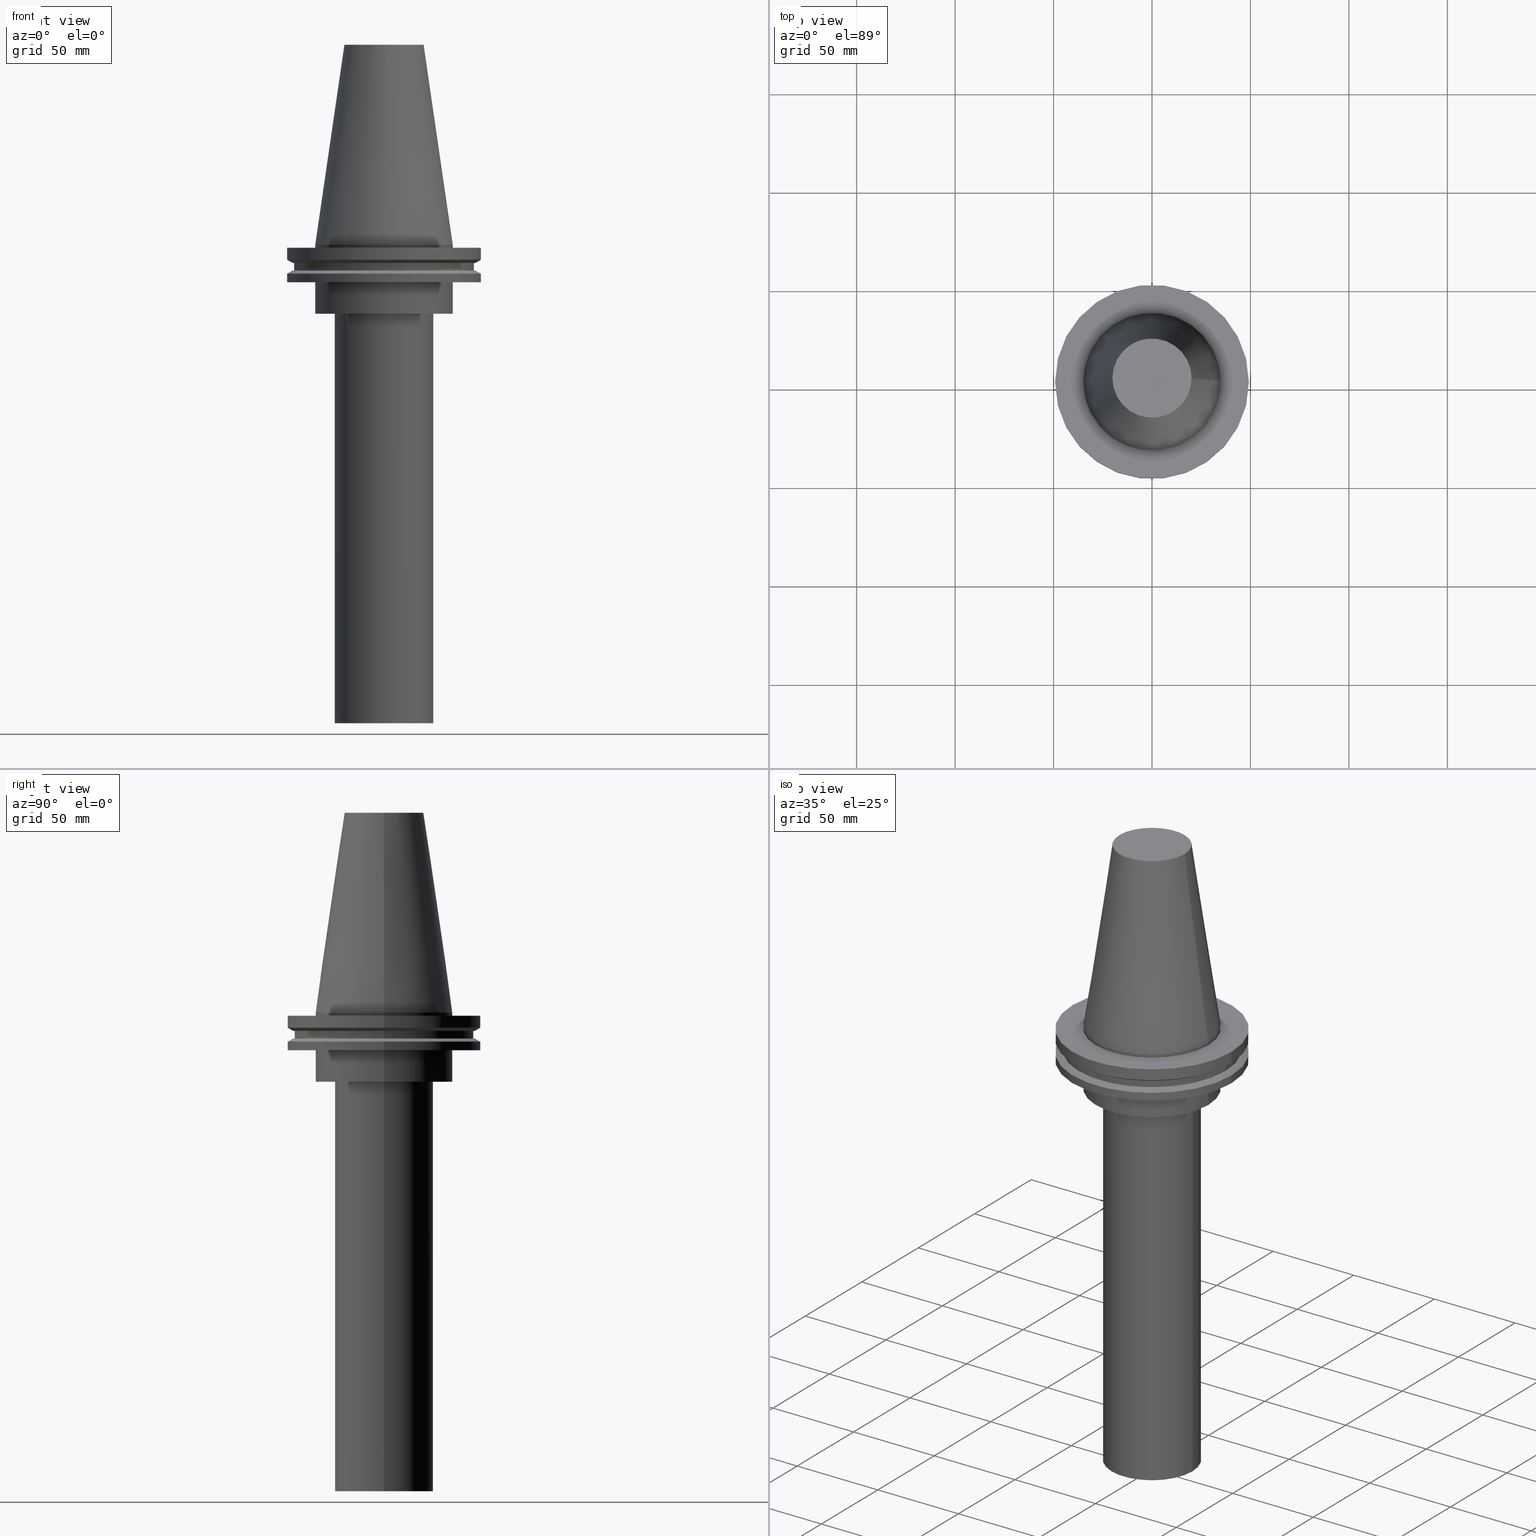
[diagram: canonical four-view strip — front | top / right | iso, engineering-drawing reading convention]
A machine part, canonical four-view strip (front | top / right | iso — engineering-drawing reading convention). The complete STEP part file that produces these views, byte-faithful:
ISO-10303-21;
HEADER;
FILE_DESCRIPTION (( 'STEP AP203' ),
    '1' );
FILE_NAME ('11.326.656.stp',
    '2022-03-09T14:52:16',
    ( '' ),
    ( '' ),
    'SwSTEP 2.0',
    'SolidWorks 2021',
    '' );
FILE_SCHEMA (( 'CONFIG_CONTROL_DESIGN' ));
ENDSEC;

DATA;
#1 = CARTESIAN_POINT ( 'NONE',  ( 49.21499999999998920, 0.000000000000000000, -19.04999999999999716 ) ) ;
#2 = ORIENTED_EDGE ( 'NONE', *, *, #74, .T. ) ;
#3 = CIRCLE ( 'NONE', #36, 49.21499999999998920 ) ;
#4 = EDGE_LOOP ( 'NONE', ( #180 ) ) ;
#5 = EDGE_LOOP ( 'NONE', ( #132 ) ) ;
#6 = FACE_OUTER_BOUND ( 'NONE', #312, .T. ) ;
#7 = ADVANCED_FACE ( 'NONE', ( #6, #198 ), #338, .T. ) ;
#8 = CARTESIAN_POINT ( 'NONE',  ( 0.000000000000000000, 0.000000000000000000, -13.05499999999999794 ) ) ;
#9 = AXIS2_PLACEMENT_3D ( 'NONE', #72, #148, #352 ) ;
#10 = AXIS2_PLACEMENT_3D ( 'NONE', #179, #154, #122 ) ;
#11 = PERSON_AND_ORGANIZATION ( #300, #267 ) ;
#12 = PLANE ( 'NONE',  #159 ) ;
#13 = DIRECTION ( 'NONE',  ( 1.000000000000000000, 0.000000000000000000, 0.000000000000000000 ) ) ;
#14 = FACE_BOUND ( 'NONE', #373, .T. ) ;
#15 = CC_DESIGN_APPROVAL ( #59, ( #130 ) ) ;
#16 = CC_DESIGN_PERSON_AND_ORGANIZATION_ASSIGNMENT ( #176, #162, ( #226 ) ) ;
#17 = PLANE ( 'NONE',  #341 ) ;
#18 = DATE_AND_TIME ( #83, #273 ) ;
#19 = DIRECTION ( 'NONE',  ( 1.000000000000000000, 0.000000000000000000, 0.000000000000000000 ) ) ;
#20 = PERSON_AND_ORGANIZATION_ROLE ( 'creator' ) ;
#21 = DIRECTION ( 'NONE',  ( -0.000000000000000000, -0.000000000000000000, 1.000000000000000000 ) ) ;
#22 = CALENDAR_DATE ( 2022, 9, 3 ) ;
#23 = CONICAL_SURFACE ( 'NONE', #240, 34.92499999999999005, 0.1448138465474119452 ) ;
#24 = DIRECTION ( 'NONE',  ( 1.000000000000000000, 0.000000000000000000, 0.000000000000000000 ) ) ;
#25 = APPROVAL_ROLE ( '' ) ;
#26 = CARTESIAN_POINT ( 'NONE',  ( 34.92499999999999005, 0.000000000000000000, 0.000000000000000000 ) ) ;
#27 = DIRECTION ( 'NONE',  ( -1.000000000000000000, 0.000000000000000000, 0.000000000000000000 ) ) ;
#28 = CYLINDRICAL_SURFACE ( 'NONE', #10, 34.92499999999999005 ) ;
#29 = CC_DESIGN_DATE_AND_TIME_ASSIGNMENT ( #77, #324, ( #294 ) ) ;
#30 = PERSON_AND_ORGANIZATION_ROLE ( 'classification_officer' ) ;
#31 = ADVANCED_FACE ( 'NONE', ( #280, #133 ), #227, .T. ) ;
#32 = EDGE_LOOP ( 'NONE', ( #191 ) ) ;
#33 = EDGE_CURVE ( 'NONE', #58, #58, #355, .T. ) ;
#34 = CARTESIAN_POINT ( 'NONE',  ( 0.000000000000000000, 0.000000000000000000, -1.499999999999987566 ) ) ;
#35 = CARTESIAN_POINT ( 'NONE',  ( 25.00000000000000000, 0.000000000000000000, -35.00000000000000000 ) ) ;
#36 = AXIS2_PLACEMENT_3D ( 'NONE', #52, #177, #91 ) ;
#37 = EDGE_LOOP ( 'NONE', ( #85 ) ) ;
#38 = ORIENTED_EDGE ( 'NONE', *, *, #372, .T. ) ;
#39 = APPROVAL_STATUS ( 'not_yet_approved' ) ;
#40 = CARTESIAN_POINT ( 'NONE',  ( 0.000000000000000000, 0.000000000000000000, 101.5999999999999943 ) ) ;
#41 = APPLICATION_PROTOCOL_DEFINITION ( 'international standard', 'config_control_design', 1994, #375 ) ;
#42 = EDGE_LOOP ( 'NONE', ( #316 ) ) ;
#43 = LOCAL_TIME ( 8, 52, 16.00000000000000000, #153 ) ;
#44 = EDGE_CURVE ( 'NONE', #244, #244, #318, .T. ) ;
#45 = PLANE ( 'NONE',  #67 ) ;
#46 = CYLINDRICAL_SURFACE ( 'NONE', #374, 49.21499999999999631 ) ;
#47 = CARTESIAN_POINT ( 'NONE',  ( 0.000000000000000000, 0.000000000000000000, -9.204999999999991189 ) ) ;
#48 = AXIS2_PLACEMENT_3D ( 'NONE', #47, #206, #290 ) ;
#49 = DIRECTION ( 'NONE',  ( 1.000000000000000000, 0.000000000000000000, 0.000000000000000000 ) ) ;
#50 = EDGE_CURVE ( 'NONE', #96, #96, #225, .T. ) ;
#51 = MECHANICAL_CONTEXT ( 'NONE', #333, 'mechanical' ) ;
#52 = CARTESIAN_POINT ( 'NONE',  ( 0.000000000000000000, 0.000000000000000000, -19.04999999999999716 ) ) ;
#53 = DIRECTION ( 'NONE',  ( 0.000000000000000000, 0.000000000000000000, -1.000000000000000000 ) ) ;
#54 = EDGE_LOOP ( 'NONE', ( #164 ) ) ;
#55 = DIRECTION ( 'NONE',  ( 1.000000000000000000, 0.000000000000000000, 0.000000000000000000 ) ) ;
#56 = EDGE_LOOP ( 'NONE', ( #183 ) ) ;
#57 = SECURITY_CLASSIFICATION_LEVEL ( 'unclassified' ) ;
#58 = VERTEX_POINT ( 'NONE', #391 ) ;
#59 = APPROVAL ( #39, 'UNSPECIFIED' ) ;
#60 = CARTESIAN_POINT ( 'NONE',  ( 0.000000000000000000, 0.000000000000000000, 101.5999999999999943 ) ) ;
#61 = ORIENTED_EDGE ( 'NONE', *, *, #230, .T. ) ;
#62 = PLANE ( 'NONE',  #66 ) ;
#63 = CC_DESIGN_PERSON_AND_ORGANIZATION_ASSIGNMENT ( #192, #30, ( #130 ) ) ;
#64 = CC_DESIGN_PERSON_AND_ORGANIZATION_ASSIGNMENT ( #86, #356, ( #257 ) ) ;
#65 = ORIENTED_EDGE ( 'NONE', *, *, #50, .F. ) ;
#66 = AXIS2_PLACEMENT_3D ( 'NONE', #108, #309, #231 ) ;
#67 = AXIS2_PLACEMENT_3D ( 'NONE', #149, #208, #351 ) ;
#68 = DIRECTION ( 'NONE',  ( -0.000000000000000000, -0.000000000000000000, 1.000000000000000000 ) ) ;
#69 = ADVANCED_FACE ( 'NONE', ( #380, #376 ), #62, .F. ) ;
#70 = EDGE_LOOP ( 'NONE', ( #103 ) ) ;
#71 = ORIENTED_EDGE ( 'NONE', *, *, #104, .T. ) ;
#72 = CARTESIAN_POINT ( 'NONE',  ( 0.000000000000000000, 49.21499999999998920, -19.04999999999999716 ) ) ;
#73 = CIRCLE ( 'NONE', #286, 49.21499999999999631 ) ;
#74 = EDGE_CURVE ( 'NONE', #150, #150, #90, .T. ) ;
#75 = FACE_OUTER_BOUND ( 'NONE', #367, .T. ) ;
#76 = DIRECTION ( 'NONE',  ( -0.000000000000000000, -0.000000000000000000, 1.000000000000000000 ) ) ;
#77 = DATE_AND_TIME ( #263, #43 ) ;
#78 = ADVANCED_FACE ( 'NONE', ( #223, #288 ), #384, .F. ) ;
#79 = CARTESIAN_POINT ( 'NONE',  ( 0.000000000000000000, 0.000000000000000000, -19.04999999999999716 ) ) ;
#80 = CONICAL_SURFACE ( 'NONE', #215, 46.43919780457007818, 1.047197551196575205 ) ;
#81 = PERSON_AND_ORGANIZATION ( #300, #267 ) ;
#82 = FACE_OUTER_BOUND ( 'NONE', #5, .T. ) ;
#83 = CALENDAR_DATE ( 2022, 9, 3 ) ;
#84 = CARTESIAN_POINT ( 'NONE',  ( 0.000000000000000000, 0.000000000000000000, -35.00000000000000000 ) ) ;
#85 = ORIENTED_EDGE ( 'NONE', *, *, #359, .T. ) ;
#86 = PERSON_AND_ORGANIZATION ( #300, #267 ) ;
#87 = ADVANCED_BREP_SHAPE_REPRESENTATION ( '11.326.656', ( #315, #207 ), #383 ) ;
#88 = CARTESIAN_POINT ( 'NONE',  ( 45.64500000000000313, 0.000000000000000000, -9.204999999999991189 ) ) ;
#89 = ORIENTED_EDGE ( 'NONE', *, *, #190, .F. ) ;
#90 = CIRCLE ( 'NONE', #213, 34.92499999999999005 ) ;
#91 = DIRECTION ( 'NONE',  ( 1.000000000000000000, 0.000000000000000000, 0.000000000000000000 ) ) ;
#92 = ORIENTED_EDGE ( 'NONE', *, *, #33, .F. ) ;
#93 = CC_DESIGN_PERSON_AND_ORGANIZATION_ASSIGNMENT ( #81, #20, ( #226 ) ) ;
#94 = FACE_OUTER_BOUND ( 'NONE', #95, .T. ) ;
#95 = EDGE_LOOP ( 'NONE', ( #2 ) ) ;
#96 = VERTEX_POINT ( 'NONE', #123 ) ;
#97 = EDGE_LOOP ( 'NONE', ( #92 ) ) ;
#98 = CARTESIAN_POINT ( 'NONE',  ( 49.21499999999999631, 0.000000000000000000, -1.499999999999987566 ) ) ;
#99 = EDGE_LOOP ( 'NONE', ( #248 ) ) ;
#100 = DIRECTION ( 'NONE',  ( 1.000000000000000000, 0.000000000000000000, 0.000000000000000000 ) ) ;
#101 = ADVANCED_FACE ( 'NONE', ( #266, #292 ), #135, .T. ) ;
#102 =( NAMED_UNIT ( * ) PLANE_ANGLE_UNIT ( ) SI_UNIT ( $, .RADIAN. ) );
#103 = ORIENTED_EDGE ( 'NONE', *, *, #44, .T. ) ;
#104 = EDGE_CURVE ( 'NONE', #250, #250, #111, .T. ) ;
#105 = AXIS2_PLACEMENT_3D ( 'NONE', #336, #68, #262 ) ;
#106 = AXIS2_PLACEMENT_3D ( 'NONE', #79, #76, #13 ) ;
#107 = EDGE_LOOP ( 'NONE', ( #302 ) ) ;
#108 = CARTESIAN_POINT ( 'NONE',  ( 0.000000000000000000, 46.43919780457007818, -9.204999999999998295 ) ) ;
#109 = CARTESIAN_POINT ( 'NONE',  ( 0.000000000000000000, 0.000000000000000000, 101.5999999999999801 ) ) ;
#110 = SHAPE_DEFINITION_REPRESENTATION ( #246, #87 ) ;
#111 = CIRCLE ( 'NONE', #350, 25.00000000000000000 ) ;
#112 = DIRECTION ( 'NONE',  ( 1.000000000000000000, 0.000000000000000000, 0.000000000000000000 ) ) ;
#113 = CARTESIAN_POINT ( 'NONE',  ( 0.000000000000000000, 0.000000000000000000, -14.65761014474876944 ) ) ;
#114 = FACE_OUTER_BOUND ( 'NONE', #344, .T. ) ;
#115 = APPLICATION_PROTOCOL_DEFINITION ( 'international standard', 'config_control_design', 1994, #333 ) ;
#116 = CARTESIAN_POINT ( 'NONE',  ( 0.000000000000000000, 25.00000000000000000, -243.0000000000000000 ) ) ;
#117 = AXIS2_PLACEMENT_3D ( 'NONE', #237, #171, #325 ) ;
#118 = LOCAL_TIME ( 8, 52, 16.00000000000000000, #229 ) ;
#119 = EDGE_CURVE ( 'NONE', #242, #242, #328, .T. ) ;
#120 = DIRECTION ( 'NONE',  ( 1.000000000000000000, 0.000000000000000000, 0.000000000000000000 ) ) ;
#121 = ORIENTED_EDGE ( 'NONE', *, *, #372, .F. ) ;
#122 = DIRECTION ( 'NONE',  ( 1.000000000000000000, 0.000000000000000000, 0.000000000000000000 ) ) ;
#123 = CARTESIAN_POINT ( 'NONE',  ( 46.43919780457007818, 0.000000000000000000, -9.204999999999991189 ) ) ;
#124 = DIRECTION ( 'NONE',  ( 1.000000000000000000, 0.000000000000000000, 0.000000000000000000 ) ) ;
#125 = EDGE_LOOP ( 'NONE', ( #161 ) ) ;
#126 = EDGE_CURVE ( 'NONE', #182, #182, #371, .T. ) ;
#127 = CARTESIAN_POINT ( 'NONE',  ( 0.000000000000000000, 0.000000000000000000, -14.65761014474876944 ) ) ;
#128 = DIRECTION ( 'NONE',  ( 1.000000000000000000, 0.000000000000000000, 0.000000000000000000 ) ) ;
#129 = LOCAL_TIME ( 8, 52, 16.00000000000000000, #194 ) ;
#130 = SECURITY_CLASSIFICATION ( '', '', #57 ) ;
#131 = DIRECTION ( 'NONE',  ( -0.000000000000000000, -0.000000000000000000, 1.000000000000000000 ) ) ;
#132 = ORIENTED_EDGE ( 'NONE', *, *, #104, .F. ) ;
#133 = FACE_OUTER_BOUND ( 'NONE', #390, .T. ) ;
#134 = AXIS2_PLACEMENT_3D ( 'NONE', #313, #283, #258 ) ;
#135 = CONICAL_SURFACE ( 'NONE', #291, 49.21499999999998920, 1.047197551196554333 ) ;
#136 =( NAMED_UNIT ( * ) SI_UNIT ( $, .STERADIAN. ) SOLID_ANGLE_UNIT ( ) );
#137 = CIRCLE ( 'NONE', #282, 34.92499999999999716 ) ;
#138 = DIRECTION ( 'NONE',  ( 1.000000000000000000, 0.000000000000000000, 0.000000000000000000 ) ) ;
#139 = APPROVAL_DATE_TIME ( #210, #241 ) ;
#140 = DIRECTION ( 'NONE',  ( -0.000000000000000000, -0.000000000000000000, 1.000000000000000000 ) ) ;
#141 = APPROVAL_ROLE ( '' ) ;
#142 = ADVANCED_FACE ( 'NONE', ( #14, #271 ), #268, .F. ) ;
#143 = FACE_BOUND ( 'NONE', #32, .T. ) ;
#144 = CIRCLE ( 'NONE', #106, 34.92499999999999716 ) ;
#145 = CARTESIAN_POINT ( 'NONE',  ( 0.000000000000000000, 49.21499999999999631, -1.499999999999992895 ) ) ;
#146 = APPROVAL_PERSON_ORGANIZATION ( #11, #241, #25 ) ;
#147 = ADVANCED_FACE ( 'NONE', ( #82 ), #17, .F. ) ;
#148 = DIRECTION ( 'NONE',  ( 0.000000000000000000, -0.000000000000000000, 1.000000000000000000 ) ) ;
#149 = CARTESIAN_POINT ( 'NONE',  ( 0.000000000000000000, 20.10819343178871321, 101.5999999999999943 ) ) ;
#150 = VERTEX_POINT ( 'NONE', #216 ) ;
#151 = AXIS2_PLACEMENT_3D ( 'NONE', #340, #252, #138 ) ;
#152 = AXIS2_PLACEMENT_3D ( 'NONE', #204, #289, #234 ) ;
#153 = COORDINATED_UNIVERSAL_TIME_OFFSET ( 6, 0, .BEHIND. ) ;
#154 = DIRECTION ( 'NONE',  ( -0.000000000000000000, -0.000000000000000000, 1.000000000000000000 ) ) ;
#155 = PERSON_AND_ORGANIZATION_ROLE ( 'creator' ) ;
#156 = DIRECTION ( 'NONE',  ( -0.000000000000000000, -0.000000000000000000, 1.000000000000000000 ) ) ;
#157 = DATE_TIME_ROLE ( 'classification_date' ) ;
#158 = PLANE ( 'NONE',  #168 ) ;
#159 = AXIS2_PLACEMENT_3D ( 'NONE', #323, #239, #19 ) ;
#160 = FACE_BOUND ( 'NONE', #125, .T. ) ;
#161 = ORIENTED_EDGE ( 'NONE', *, *, #197, .F. ) ;
#162 = PERSON_AND_ORGANIZATION_ROLE ( 'design_supplier' ) ;
#163 = EDGE_LOOP ( 'NONE', ( #277 ) ) ;
#164 = ORIENTED_EDGE ( 'NONE', *, *, #197, .T. ) ;
#165 = ORIENTED_EDGE ( 'NONE', *, *, #359, .F. ) ;
#166 = CALENDAR_DATE ( 2022, 9, 3 ) ;
#167 = EDGE_LOOP ( 'NONE', ( #61 ) ) ;
#168 = AXIS2_PLACEMENT_3D ( 'NONE', #332, #331, #185 ) ;
#169 = FACE_BOUND ( 'NONE', #37, .T. ) ;
#170 = CARTESIAN_POINT ( 'NONE',  ( 0.000000000000000000, 0.000000000000000000, 101.5999999999999943 ) ) ;
#171 = DIRECTION ( 'NONE',  ( -0.000000000000000000, -0.000000000000000000, 1.000000000000000000 ) ) ;
#172 = ADVANCED_FACE ( 'NONE', ( #321, #175 ), #173, .T. ) ;
#173 = CYLINDRICAL_SURFACE ( 'NONE', #334, 45.64500000000000313 ) ;
#174 = LOCAL_TIME ( 8, 52, 16.00000000000000000, #245 ) ;
#175 = FACE_OUTER_BOUND ( 'NONE', #167, .T. ) ;
#176 = PERSON_AND_ORGANIZATION ( #300, #267 ) ;
#177 = DIRECTION ( 'NONE',  ( -0.000000000000000000, -0.000000000000000000, 1.000000000000000000 ) ) ;
#178 = ADVANCED_FACE ( 'NONE', ( #114, #143 ), #80, .T. ) ;
#179 = CARTESIAN_POINT ( 'NONE',  ( 0.000000000000000000, 0.000000000000000000, 101.5999999999999943 ) ) ;
#180 = ORIENTED_EDGE ( 'NONE', *, *, #314, .F. ) ;
#181 = CARTESIAN_POINT ( 'NONE',  ( 45.64500000000000313, 0.000000000000000000, -13.05499999999999794 ) ) ;
#182 = VERTEX_POINT ( 'NONE', #26 ) ;
#183 = ORIENTED_EDGE ( 'NONE', *, *, #317, .F. ) ;
#184 = CALENDAR_DATE ( 2022, 9, 3 ) ;
#185 = DIRECTION ( 'NONE',  ( -1.000000000000000000, 0.000000000000000000, -0.000000000000000000 ) ) ;
#186 = ORIENTED_EDGE ( 'NONE', *, *, #74, .F. ) ;
#187 = AXIS2_PLACEMENT_3D ( 'NONE', #40, #221, #259 ) ;
#188 = CIRCLE ( 'NONE', #233, 25.00000000000000000 ) ;
#189 = CC_DESIGN_DATE_AND_TIME_ASSIGNMENT ( #303, #157, ( #130 ) ) ;
#190 = EDGE_CURVE ( 'NONE', #209, #209, #144, .T. ) ;
#191 = ORIENTED_EDGE ( 'NONE', *, *, #50, .T. ) ;
#192 = PERSON_AND_ORGANIZATION ( #300, #267 ) ;
#193 = EDGE_LOOP ( 'NONE', ( #196 ) ) ;
#194 = COORDINATED_UNIVERSAL_TIME_OFFSET ( 6, 0, .BEHIND. ) ;
#195 = CC_DESIGN_PERSON_AND_ORGANIZATION_ASSIGNMENT ( #345, #155, ( #294 ) ) ;
#196 = ORIENTED_EDGE ( 'NONE', *, *, #126, .F. ) ;
#197 = EDGE_CURVE ( 'NONE', #368, #368, #329, .T. ) ;
#198 = FACE_OUTER_BOUND ( 'NONE', #220, .T. ) ;
#199 = ORIENTED_EDGE ( 'NONE', *, *, #119, .F. ) ;
#200 = AXIS2_PLACEMENT_3D ( 'NONE', #304, #251, #120 ) ;
#201 = DIRECTION ( 'NONE',  ( 0.000000000000000000, 0.000000000000000000, -1.000000000000000000 ) ) ;
#202 = FACE_OUTER_BOUND ( 'NONE', #56, .T. ) ;
#203 = ADVANCED_FACE ( 'NONE', ( #169, #75 ), #12, .F. ) ;
#204 = CARTESIAN_POINT ( 'NONE',  ( 0.000000000000000000, 0.000000000000000000, -13.05499999999999794 ) ) ;
#205 = APPROVAL_ROLE ( '' ) ;
#206 = DIRECTION ( 'NONE',  ( -0.000000000000000000, -0.000000000000000000, 1.000000000000000000 ) ) ;
#207 = AXIS2_PLACEMENT_3D ( 'NONE', #287, #353, #387 ) ;
#208 = DIRECTION ( 'NONE',  ( 0.000000000000000000, 0.000000000000000000, -1.000000000000000000 ) ) ;
#209 = VERTEX_POINT ( 'NONE', #326 ) ;
#210 = DATE_AND_TIME ( #22, #118 ) ;
#211 = ADVANCED_FACE ( 'NONE', ( #235 ), #45, .F. ) ;
#212 = VERTEX_POINT ( 'NONE', #181 ) ;
#213 = AXIS2_PLACEMENT_3D ( 'NONE', #34, #131, #100 ) ;
#214 = EDGE_LOOP ( 'NONE', ( #71 ) ) ;
#215 = AXIS2_PLACEMENT_3D ( 'NONE', #382, #381, #112 ) ;
#216 = CARTESIAN_POINT ( 'NONE',  ( 34.92499999999999005, 0.000000000000000000, -1.499999999999987566 ) ) ;
#217 = CARTESIAN_POINT ( 'NONE',  ( 20.10819343178871321, 0.000000000000000000, 101.5999999999999801 ) ) ;
#218 = ORIENTED_EDGE ( 'NONE', *, *, #317, .T. ) ;
#219 = DIRECTION ( 'NONE',  ( -0.000000000000000000, -0.000000000000000000, 1.000000000000000000 ) ) ;
#220 = EDGE_LOOP ( 'NONE', ( #38 ) ) ;
#221 = DIRECTION ( 'NONE',  ( -0.000000000000000000, -0.000000000000000000, 1.000000000000000000 ) ) ;
#222 =( LENGTH_UNIT ( ) NAMED_UNIT ( * ) SI_UNIT ( .MILLI., .METRE. ) );
#223 = FACE_OUTER_BOUND ( 'NONE', #107, .T. ) ;
#224 = ORIENTED_EDGE ( 'NONE', *, *, #44, .F. ) ;
#225 = CIRCLE ( 'NONE', #105, 46.43919780457007818 ) ;
#226 = PRODUCT_DEFINITION_FORMATION_WITH_SPECIFIED_SOURCE ( 'ANY', '', #257, .NOT_KNOWN. ) ;
#227 = CYLINDRICAL_SURFACE ( 'NONE', #187, 49.21499999999998920 ) ;
#228 = DATE_AND_TIME ( #166, #129 ) ;
#229 = COORDINATED_UNIVERSAL_TIME_OFFSET ( 6, 0, .BEHIND. ) ;
#230 = EDGE_CURVE ( 'NONE', #212, #212, #322, .T. ) ;
#231 = DIRECTION ( 'NONE',  ( 1.000000000000000000, 0.000000000000000000, 0.000000000000000000 ) ) ;
#232 = DIRECTION ( 'NONE',  ( -0.000000000000000000, -0.000000000000000000, 1.000000000000000000 ) ) ;
#233 = AXIS2_PLACEMENT_3D ( 'NONE', #84, #392, #55 ) ;
#234 = DIRECTION ( 'NONE',  ( 1.000000000000000000, 0.000000000000000000, 0.000000000000000000 ) ) ;
#235 = FACE_OUTER_BOUND ( 'NONE', #54, .T. ) ;
#236 = APPROVAL_STATUS ( 'not_yet_approved' ) ;
#237 = CARTESIAN_POINT ( 'NONE',  ( 0.000000000000000000, 0.000000000000000000, 0.000000000000000000 ) ) ;
#238 = APPROVAL_DATE_TIME ( #18, #348 ) ;
#239 = DIRECTION ( 'NONE',  ( 0.000000000000000000, -0.000000000000000000, 1.000000000000000000 ) ) ;
#240 = AXIS2_PLACEMENT_3D ( 'NONE', #330, #53, #27 ) ;
#241 = APPROVAL ( #236, 'UNSPECIFIED' ) ;
#242 = VERTEX_POINT ( 'NONE', #88 ) ;
#243 = EDGE_LOOP ( 'NONE', ( #379 ) ) ;
#244 = VERTEX_POINT ( 'NONE', #394 ) ;
#245 = COORDINATED_UNIVERSAL_TIME_OFFSET ( 6, 0, .BEHIND. ) ;
#246 = PRODUCT_DEFINITION_SHAPE ( 'NONE', 'NONE',  #294 ) ;
#247 = VERTEX_POINT ( 'NONE', #1 ) ;
#248 = ORIENTED_EDGE ( 'NONE', *, *, #190, .T. ) ;
#249 = CC_DESIGN_SECURITY_CLASSIFICATION ( #130, ( #226 ) ) ;
#250 = VERTEX_POINT ( 'NONE', #362 ) ;
#251 = DIRECTION ( 'NONE',  ( -0.000000000000000000, -0.000000000000000000, 1.000000000000000000 ) ) ;
#252 = DIRECTION ( 'NONE',  ( -0.000000000000000000, -0.000000000000000000, 1.000000000000000000 ) ) ;
#253 = AXIS2_PLACEMENT_3D ( 'NONE', #145, #360, #386 ) ;
#254 = CIRCLE ( 'NONE', #388, 49.21499999999998920 ) ;
#255 = DESIGN_CONTEXT ( 'detailed design', #375, 'design' ) ;
#256 = ORIENTED_EDGE ( 'NONE', *, *, #230, .F. ) ;
#257 = PRODUCT ( '11.326.656', '11.326.656', '', ( #51 ) ) ;
#258 = DIRECTION ( 'NONE',  ( 1.000000000000000000, 0.000000000000000000, 0.000000000000000000 ) ) ;
#259 = DIRECTION ( 'NONE',  ( 1.000000000000000000, 0.000000000000000000, 0.000000000000000000 ) ) ;
#260 = AXIS2_PLACEMENT_3D ( 'NONE', #8, #378, #128 ) ;
#261 = CC_DESIGN_APPROVAL ( #241, ( #294 ) ) ;
#262 = DIRECTION ( 'NONE',  ( 1.000000000000000000, 0.000000000000000000, 0.000000000000000000 ) ) ;
#263 = CALENDAR_DATE ( 2022, 9, 3 ) ;
#264 = ADVANCED_FACE ( 'NONE', ( #202, #320 ), #46, .T. ) ;
#265 = DIRECTION ( 'NONE',  ( 1.000000000000000000, 0.000000000000000000, 0.000000000000000000 ) ) ;
#266 = FACE_BOUND ( 'NONE', #97, .T. ) ;
#267 = ORGANIZATION ( 'UNSPECIFIED', 'UNSPECIFIED', '' ) ;
#268 = PLANE ( 'NONE',  #253 ) ;
#269 = DIRECTION ( 'NONE',  ( -1.000000000000000000, 0.000000000000000000, 0.000000000000000000 ) ) ;
#270 = ADVANCED_FACE ( 'NONE', ( #279, #389 ), #158, .F. ) ;
#271 = FACE_OUTER_BOUND ( 'NONE', #310, .T. ) ;
#272 = CYLINDRICAL_SURFACE ( 'NONE', #200, 25.00000000000000000 ) ;
#273 = LOCAL_TIME ( 8, 52, 16.00000000000000000, #293 ) ;
#274 = CARTESIAN_POINT ( 'NONE',  ( 0.000000000000000000, 0.000000000000000000, -35.00000000000000000 ) ) ;
#275 = DIRECTION ( 'NONE',  ( 1.000000000000000000, 0.000000000000000000, 0.000000000000000000 ) ) ;
#276 = CARTESIAN_POINT ( 'NONE',  ( 0.000000000000000000, 0.000000000000000000, -1.499999999999987566 ) ) ;
#277 = ORIENTED_EDGE ( 'NONE', *, *, #33, .T. ) ;
#278 = PERSON_AND_ORGANIZATION ( #300, #267 ) ;
#279 = FACE_BOUND ( 'NONE', #369, .T. ) ;
#280 = FACE_OUTER_BOUND ( 'NONE', #4, .T. ) ;
#281 = ORIENTED_EDGE ( 'NONE', *, *, #306, .T. ) ;
#282 = AXIS2_PLACEMENT_3D ( 'NONE', #274, #21, #124 ) ;
#283 = DIRECTION ( 'NONE',  ( -0.000000000000000000, -0.000000000000000000, 1.000000000000000000 ) ) ;
#284 = ORIENTED_EDGE ( 'NONE', *, *, #126, .T. ) ;
#285 = ADVANCED_FACE ( 'NONE', ( #160, #363 ), #23, .T. ) ;
#286 = AXIS2_PLACEMENT_3D ( 'NONE', #276, #370, #275 ) ;
#287 = CARTESIAN_POINT ( 'NONE',  ( 0.000000000000000000, 0.000000000000000000, 0.000000000000000000 ) ) ;
#288 = FACE_BOUND ( 'NONE', #99, .T. ) ;
#289 = DIRECTION ( 'NONE',  ( -0.000000000000000000, -0.000000000000000000, 1.000000000000000000 ) ) ;
#290 = DIRECTION ( 'NONE',  ( 1.000000000000000000, 0.000000000000000000, 0.000000000000000000 ) ) ;
#291 = AXIS2_PLACEMENT_3D ( 'NONE', #113, #201, #269 ) ;
#292 = FACE_OUTER_BOUND ( 'NONE', #42, .T. ) ;
#293 = COORDINATED_UNIVERSAL_TIME_OFFSET ( 6, 0, .BEHIND. ) ;
#294 = PRODUCT_DEFINITION ( 'UNKNOWN', '', #226, #255 ) ;
#295 = DIRECTION ( 'NONE',  ( 0.000000000000000000, -0.000000000000000000, 1.000000000000000000 ) ) ;
#296 = FACE_OUTER_BOUND ( 'NONE', #214, .T. ) ;
#297 = APPROVAL_PERSON_ORGANIZATION ( #278, #59, #141 ) ;
#298 = DIRECTION ( 'NONE',  ( 1.000000000000000000, 0.000000000000000000, 0.000000000000000000 ) ) ;
#299 = FACE_OUTER_BOUND ( 'NONE', #307, .T. ) ;
#300 = PERSON ( 'UNSPECIFIED', 'UNSPECIFIED', 'UNSPECIFIED', ('UNSPECIFIED'), ('UNSPECIFIED'), ('UNSPECIFIED') ) ;
#301 = FACE_OUTER_BOUND ( 'NONE', #193, .T. ) ;
#302 = ORIENTED_EDGE ( 'NONE', *, *, #306, .F. ) ;
#303 = DATE_AND_TIME ( #184, #174 ) ;
#304 = CARTESIAN_POINT ( 'NONE',  ( 0.000000000000000000, 0.000000000000000000, 0.000000000000000000 ) ) ;
#305 = APPROVAL_PERSON_ORGANIZATION ( #361, #348, #205 ) ;
#306 = EDGE_CURVE ( 'NONE', #247, #247, #3, .T. ) ;
#307 = EDGE_LOOP ( 'NONE', ( #165 ) ) ;
#308 = VERTEX_POINT ( 'NONE', #339 ) ;
#309 = DIRECTION ( 'NONE',  ( 0.000000000000000000, -0.000000000000000000, 1.000000000000000000 ) ) ;
#310 = EDGE_LOOP ( 'NONE', ( #218 ) ) ;
#311 = APPROVAL_DATE_TIME ( #228, #59 ) ;
#312 = EDGE_LOOP ( 'NONE', ( #89 ) ) ;
#313 = CARTESIAN_POINT ( 'NONE',  ( 0.000000000000000000, 0.000000000000000000, 101.5999999999999943 ) ) ;
#314 = EDGE_CURVE ( 'NONE', #366, #366, #254, .T. ) ;
#315 = MANIFOLD_SOLID_BREP ( 'CKB', #393 ) ;
#316 = ORIENTED_EDGE ( 'NONE', *, *, #314, .T. ) ;
#317 = EDGE_CURVE ( 'NONE', #342, #342, #73, .T. ) ;
#318 = CIRCLE ( 'NONE', #151, 49.21500000000000341 ) ;
#319 = CARTESIAN_POINT ( 'NONE',  ( 0.000000000000000000, 0.000000000000000000, -243.0000000000000000 ) ) ;
#320 = FACE_OUTER_BOUND ( 'NONE', #70, .T. ) ;
#321 = FACE_OUTER_BOUND ( 'NONE', #364, .T. ) ;
#322 = CIRCLE ( 'NONE', #152, 45.64500000000000313 ) ;
#323 = CARTESIAN_POINT ( 'NONE',  ( 0.000000000000000000, 34.92499999999999716, -35.00000000000000000 ) ) ;
#324 = DATE_TIME_ROLE ( 'creation_date' ) ;
#325 = DIRECTION ( 'NONE',  ( 1.000000000000000000, 0.000000000000000000, 0.000000000000000000 ) ) ;
#326 = CARTESIAN_POINT ( 'NONE',  ( 34.92499999999999716, 0.000000000000000000, -19.04999999999999716 ) ) ;
#327 = APPROVAL_STATUS ( 'not_yet_approved' ) ;
#328 = CIRCLE ( 'NONE', #48, 45.64500000000000313 ) ;
#329 = CIRCLE ( 'NONE', #358, 20.10819343178871321 ) ;
#330 = CARTESIAN_POINT ( 'NONE',  ( 0.000000000000000000, 0.000000000000000000, 0.000000000000000000 ) ) ;
#331 = DIRECTION ( 'NONE',  ( 0.000000000000000000, 0.000000000000000000, -1.000000000000000000 ) ) ;
#332 = CARTESIAN_POINT ( 'NONE',  ( 0.000000000000000000, 45.64500000000000313, -13.05499999999999794 ) ) ;
#333 = APPLICATION_CONTEXT ( 'configuration controlled 3d designs of mechanical parts and assemblies' ) ;
#334 = AXIS2_PLACEMENT_3D ( 'NONE', #170, #385, #354 ) ;
#335 = EDGE_LOOP ( 'NONE', ( #65 ) ) ;
#336 = CARTESIAN_POINT ( 'NONE',  ( 0.000000000000000000, 0.000000000000000000, -9.204999999999991189 ) ) ;
#337 = VERTEX_POINT ( 'NONE', #35 ) ;
#338 = CYLINDRICAL_SURFACE ( 'NONE', #134, 34.92499999999999716 ) ;
#339 = CARTESIAN_POINT ( 'NONE',  ( 34.92499999999999716, 0.000000000000000000, -35.00000000000000000 ) ) ;
#340 = CARTESIAN_POINT ( 'NONE',  ( 0.000000000000000000, 0.000000000000000000, -7.602389855251287187 ) ) ;
#341 = AXIS2_PLACEMENT_3D ( 'NONE', #116, #295, #49 ) ;
#342 = VERTEX_POINT ( 'NONE', #98 ) ;
#343 = UNCERTAINTY_MEASURE_WITH_UNIT (LENGTH_MEASURE( 1.000000000000000082E-05 ), #222, 'distance_accuracy_value', 'NONE');
#344 = EDGE_LOOP ( 'NONE', ( #224 ) ) ;
#345 = PERSON_AND_ORGANIZATION ( #300, #267 ) ;
#346 = ADVANCED_FACE ( 'NONE', ( #299, #296 ), #272, .T. ) ;
#347 = EDGE_LOOP ( 'NONE', ( #284 ) ) ;
#348 = APPROVAL ( #327, 'UNSPECIFIED' ) ;
#349 = DIRECTION ( 'NONE',  ( 1.000000000000000000, 0.000000000000000000, 0.000000000000000000 ) ) ;
#350 = AXIS2_PLACEMENT_3D ( 'NONE', #319, #140, #265 ) ;
#351 = DIRECTION ( 'NONE',  ( -1.000000000000000000, 0.000000000000000000, -0.000000000000000000 ) ) ;
#352 = DIRECTION ( 'NONE',  ( 1.000000000000000000, 0.000000000000000000, 0.000000000000000000 ) ) ;
#353 = DIRECTION ( 'NONE',  ( 0.000000000000000000, 0.000000000000000000, 1.000000000000000000 ) ) ;
#354 = DIRECTION ( 'NONE',  ( 1.000000000000000000, 0.000000000000000000, 0.000000000000000000 ) ) ;
#355 = CIRCLE ( 'NONE', #260, 46.43919780457007818 ) ;
#356 = PERSON_AND_ORGANIZATION_ROLE ( 'design_owner' ) ;
#357 = PRODUCT_RELATED_PRODUCT_CATEGORY ( 'detail', '', ( #257 ) ) ;
#358 = AXIS2_PLACEMENT_3D ( 'NONE', #109, #232, #349 ) ;
#359 = EDGE_CURVE ( 'NONE', #337, #337, #188, .T. ) ;
#360 = DIRECTION ( 'NONE',  ( 0.000000000000000000, 0.000000000000000000, -1.000000000000000000 ) ) ;
#361 = PERSON_AND_ORGANIZATION ( #300, #267 ) ;
#362 = CARTESIAN_POINT ( 'NONE',  ( 25.00000000000000000, 0.000000000000000000, -243.0000000000000000 ) ) ;
#363 = FACE_OUTER_BOUND ( 'NONE', #347, .T. ) ;
#364 = EDGE_LOOP ( 'NONE', ( #199 ) ) ;
#365 = CC_DESIGN_APPROVAL ( #348, ( #226 ) ) ;
#366 = VERTEX_POINT ( 'NONE', #377 ) ;
#367 = EDGE_LOOP ( 'NONE', ( #121 ) ) ;
#368 = VERTEX_POINT ( 'NONE', #217 ) ;
#369 = EDGE_LOOP ( 'NONE', ( #256 ) ) ;
#370 = DIRECTION ( 'NONE',  ( -0.000000000000000000, -0.000000000000000000, 1.000000000000000000 ) ) ;
#371 = CIRCLE ( 'NONE', #117, 34.92499999999999005 ) ;
#372 = EDGE_CURVE ( 'NONE', #308, #308, #137, .T. ) ;
#373 = EDGE_LOOP ( 'NONE', ( #186 ) ) ;
#374 = AXIS2_PLACEMENT_3D ( 'NONE', #60, #156, #298 ) ;
#375 = APPLICATION_CONTEXT ( 'configuration controlled 3d designs of mechanical parts and assemblies' ) ;
#376 = FACE_BOUND ( 'NONE', #243, .T. ) ;
#377 = CARTESIAN_POINT ( 'NONE',  ( 49.21499999999998920, 0.000000000000000000, -14.65761014474876944 ) ) ;
#378 = DIRECTION ( 'NONE',  ( -0.000000000000000000, -0.000000000000000000, 1.000000000000000000 ) ) ;
#379 = ORIENTED_EDGE ( 'NONE', *, *, #119, .T. ) ;
#380 = FACE_OUTER_BOUND ( 'NONE', #335, .T. ) ;
#381 = DIRECTION ( 'NONE',  ( -0.000000000000000000, -0.000000000000000000, 1.000000000000000000 ) ) ;
#382 = CARTESIAN_POINT ( 'NONE',  ( 0.000000000000000000, 0.000000000000000000, -9.204999999999991189 ) ) ;
#383 =( GEOMETRIC_REPRESENTATION_CONTEXT ( 3 ) GLOBAL_UNCERTAINTY_ASSIGNED_CONTEXT ( ( #343 ) ) GLOBAL_UNIT_ASSIGNED_CONTEXT ( ( #222, #102, #136 ) ) REPRESENTATION_CONTEXT ( 'NONE', 'WORKASPACE' ) );
#384 = PLANE ( 'NONE',  #9 ) ;
#385 = DIRECTION ( 'NONE',  ( -0.000000000000000000, -0.000000000000000000, 1.000000000000000000 ) ) ;
#386 = DIRECTION ( 'NONE',  ( -1.000000000000000000, 0.000000000000000000, -0.000000000000000000 ) ) ;
#387 = DIRECTION ( 'NONE',  ( 1.000000000000000000, 0.000000000000000000, 0.000000000000000000 ) ) ;
#388 = AXIS2_PLACEMENT_3D ( 'NONE', #127, #219, #24 ) ;
#389 = FACE_OUTER_BOUND ( 'NONE', #163, .T. ) ;
#390 = EDGE_LOOP ( 'NONE', ( #281 ) ) ;
#391 = CARTESIAN_POINT ( 'NONE',  ( 46.43919780457007818, 0.000000000000000000, -13.05499999999999794 ) ) ;
#392 = DIRECTION ( 'NONE',  ( -0.000000000000000000, -0.000000000000000000, 1.000000000000000000 ) ) ;
#393 = CLOSED_SHELL ( 'NONE', ( #285, #211, #203, #7, #78, #31, #101, #270, #172, #69, #178, #264, #142, #395, #346, #147 ) ) ;
#394 = CARTESIAN_POINT ( 'NONE',  ( 49.21500000000000341, 0.000000000000000000, -7.602389855251287187 ) ) ;
#395 = ADVANCED_FACE ( 'NONE', ( #301, #94 ), #28, .T. ) ;
ENDSEC;
END-ISO-10303-21;
